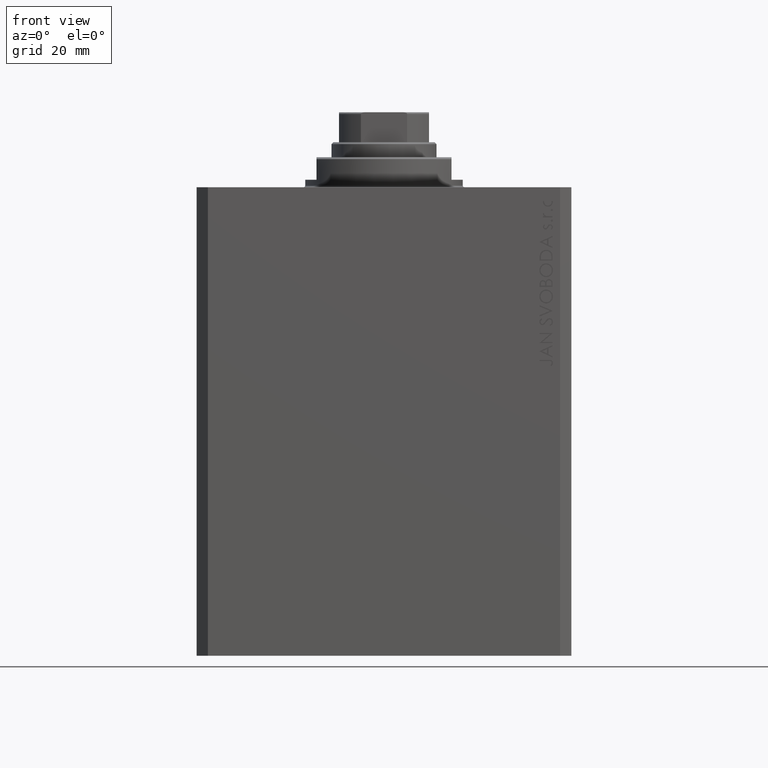
[diagram: clean part render]
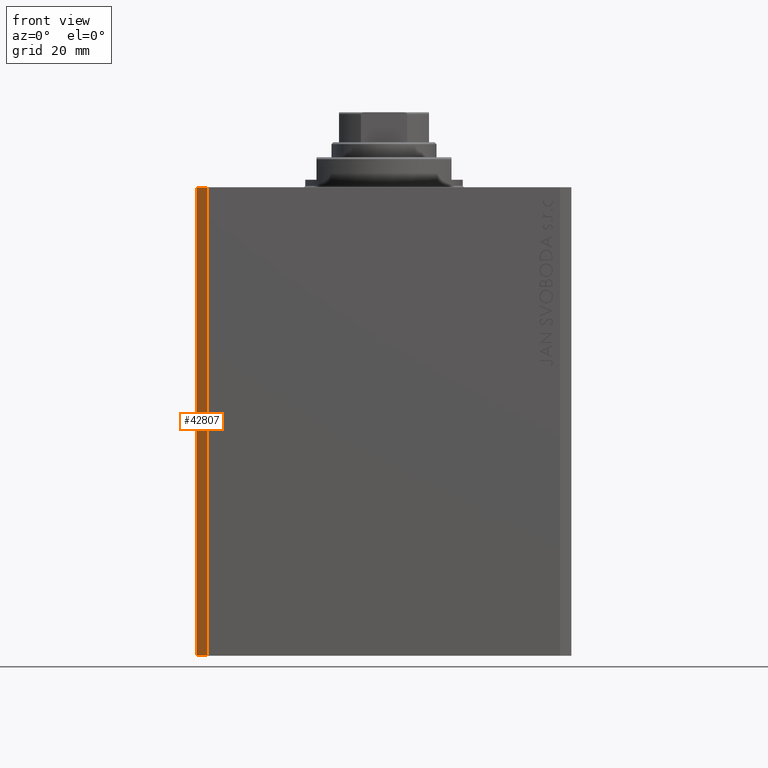
[diagram: same view with one face highlighted and labeled with its STEP entity id]
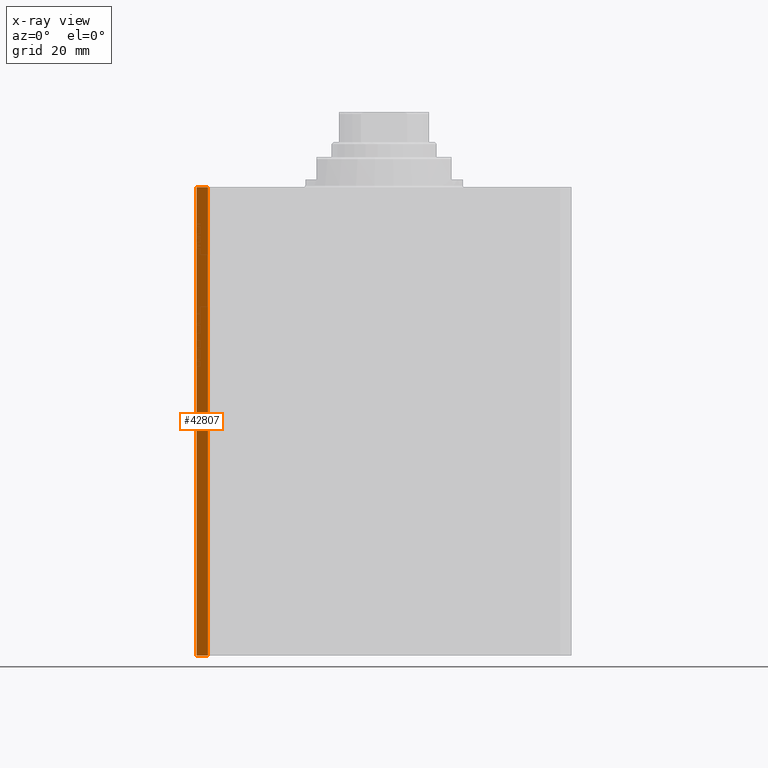
[diagram: x-ray of the same camera — body ghosted, the highlighted face saturated]
A machine part, front view. The second image highlights one B-rep face of the part: STEP entity #42807.
The next image is the same camera in x-ray: the body ghosted, the highlighted face saturated — about 0% of this face is hidden behind the body in this view.
In plain terms, the highlighted planar face has unit normal (-0.7071, -0.7071, 0).
Its self-contained STEP definition (entity closure, byte-faithful):
#251 = LINE ( 'NONE', #3839, #21684 ) ;
#1201 = DIRECTION ( 'NONE',  ( 0.7071067811865491270, -0.7071067811865459074, 0.000000000000000000 ) ) ;
#1249 = CARTESIAN_POINT ( 'NONE',  ( -50.00000000000000000, -34.50000000000000000, 0.000000000000000000 ) ) ;
#2860 = CARTESIAN_POINT ( 'NONE',  ( -50.00000000000000000, -34.50000000000000000, -125.0000000000000000 ) ) ;
#3307 = ORIENTED_EDGE ( 'NONE', *, *, #33465, .T. ) ;
#3839 = CARTESIAN_POINT ( 'NONE',  ( -50.00000000000000000, -34.50000000000000000, 0.000000000000000000 ) ) ;
#5327 = CARTESIAN_POINT ( 'NONE',  ( -50.00000000000000000, -34.50000000000000000, -125.0000000000000000 ) ) ;
#14730 = ORIENTED_EDGE ( 'NONE', *, *, #31393, .T. ) ;
#14898 = PLANE ( 'NONE',  #39588 ) ;
#15564 = EDGE_CURVE ( 'NONE', #25645, #30230, #41244, .T. ) ;
#18016 = DIRECTION ( 'NONE',  ( -0.7071067811865459074, -0.7071067811865491270, 0.000000000000000000 ) ) ;
#19741 = ORIENTED_EDGE ( 'NONE', *, *, #28326, .F. ) ;
#21152 = CARTESIAN_POINT ( 'NONE',  ( -50.00000000000000000, -34.50000000000000000, -125.0000000000000000 ) ) ;
#21684 = VECTOR ( 'NONE', #1201, 1000.000000000000114 ) ;
#23893 = DIRECTION ( 'NONE',  ( 0.000000000000000000, 0.000000000000000000, 1.000000000000000000 ) ) ;
#25316 = CARTESIAN_POINT ( 'NONE',  ( -47.00000000000000000, -37.49999999999999289, -125.0000000000000000 ) ) ;
#25645 = VERTEX_POINT ( 'NONE', #2860 ) ;
#26410 = EDGE_LOOP ( 'NONE', ( #19741, #45680, #14730, #3307 ) ) ;
#28326 = EDGE_CURVE ( 'NONE', #30230, #38072, #251, .T. ) ;
#29531 = LINE ( 'NONE', #21152, #42795 ) ;
#29988 = FACE_OUTER_BOUND ( 'NONE', #26410, .T. ) ;
#30000 = VERTEX_POINT ( 'NONE', #25316 ) ;
#30230 = VERTEX_POINT ( 'NONE', #1249 ) ;
#30824 = LINE ( 'NONE', #41844, #36377 ) ;
#31393 = EDGE_CURVE ( 'NONE', #25645, #30000, #29531, .T. ) ;
#33122 = DIRECTION ( 'NONE',  ( 0.7071067811865491270, -0.7071067811865459074, 0.000000000000000000 ) ) ;
#33465 = EDGE_CURVE ( 'NONE', #30000, #38072, #30824, .T. ) ;
#34758 = DIRECTION ( 'NONE',  ( 0.000000000000000000, 0.000000000000000000, 1.000000000000000000 ) ) ;
#36377 = VECTOR ( 'NONE', #23893, 1000.000000000000000 ) ;
#37175 = CARTESIAN_POINT ( 'NONE',  ( -50.00000000000000000, -34.50000000000000000, -125.0000000000000000 ) ) ;
#38072 = VERTEX_POINT ( 'NONE', #39287 ) ;
#39065 = VECTOR ( 'NONE', #34758, 1000.000000000000000 ) ;
#39287 = CARTESIAN_POINT ( 'NONE',  ( -47.00000000000000000, -37.49999999999999289, 0.000000000000000000 ) ) ;
#39588 = AXIS2_PLACEMENT_3D ( 'NONE', #37175, #18016, #40285 ) ;
#40285 = DIRECTION ( 'NONE',  ( 0.7071067811865491270, -0.7071067811865459074, 0.000000000000000000 ) ) ;
#41244 = LINE ( 'NONE', #5327, #39065 ) ;
#41844 = CARTESIAN_POINT ( 'NONE',  ( -47.00000000000000000, -37.49999999999999289, -125.0000000000000000 ) ) ;
#42795 = VECTOR ( 'NONE', #33122, 1000.000000000000114 ) ;
#42807 = ADVANCED_FACE ( 'NONE', ( #29988 ), #14898, .T. ) ;
#45680 = ORIENTED_EDGE ( 'NONE', *, *, #15564, .F. ) ;